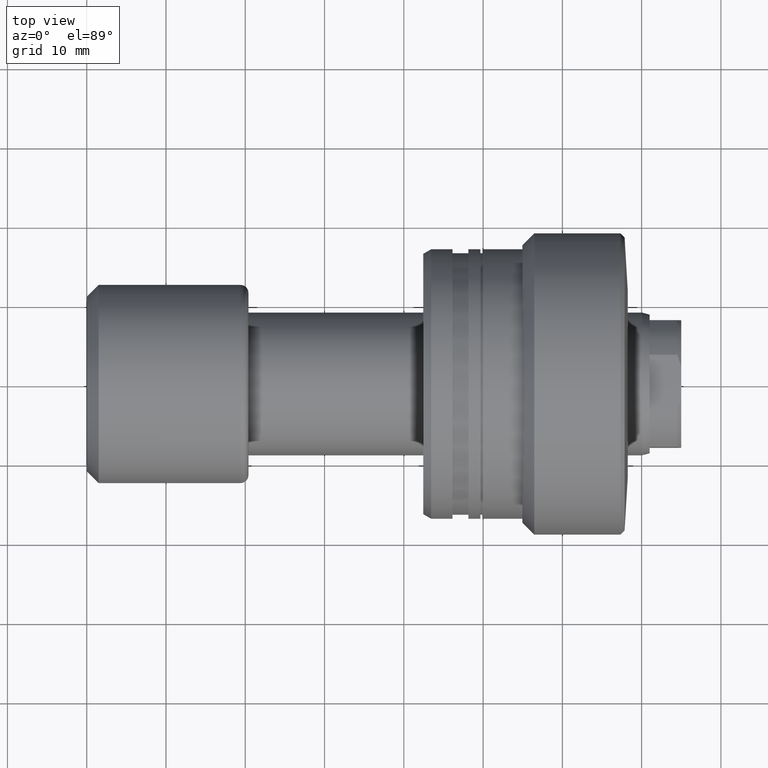
[diagram: clean part render]
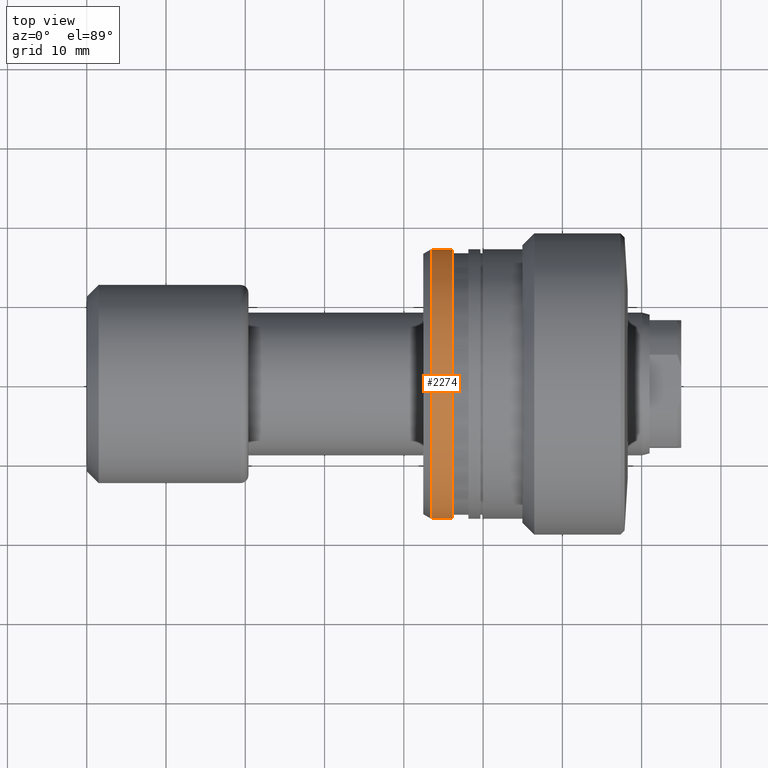
[diagram: same view with one face highlighted and labeled with its STEP entity id]
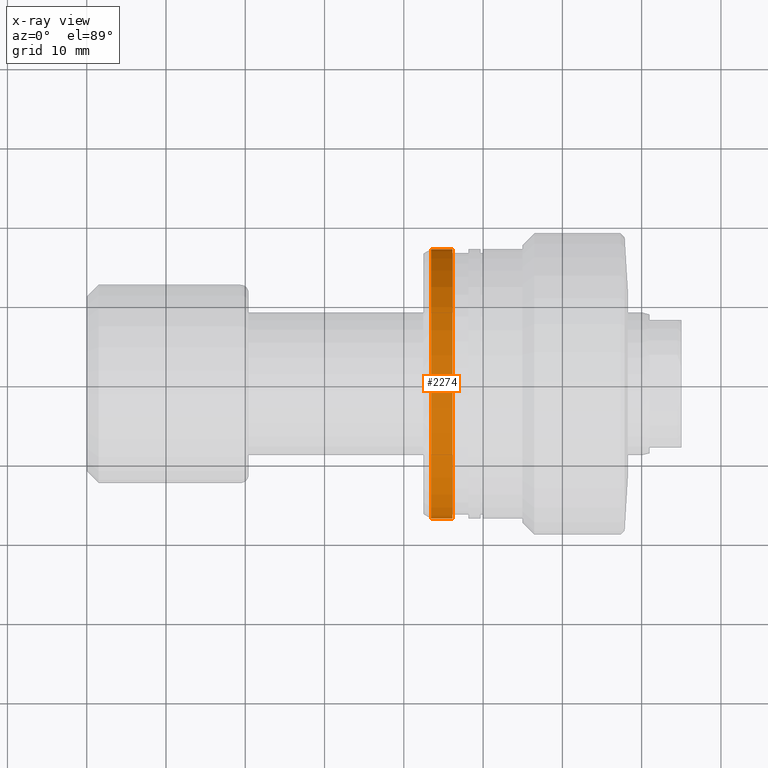
[diagram: x-ray of the same camera — body ghosted, the highlighted face saturated]
A machine part, top view. The second image highlights one B-rep face of the part: STEP entity #2274.
The next image is the same camera in x-ray: the body ghosted, the highlighted face saturated — about 0% of this face is hidden behind the body in this view.
In plain terms, the highlighted cylindrical surface (partial cylindrical patch) has radius 17 mm, axis along (-1, 0, 0).
Its self-contained STEP definition (entity closure, byte-faithful):
#110 = EDGE_CURVE ( 'NONE', #1497, #1958, #1859, .T. ) ;
#119 = AXIS2_PLACEMENT_3D ( 'NONE', #711, #321, #307 ) ;
#141 = CARTESIAN_POINT ( 'NONE',  ( -30.28002276692732408, 0.000000000000000000, 0.000000000000000000 ) ) ;
#154 = CARTESIAN_POINT ( 'NONE',  ( -30.28002276692730632, 16.99999999999999645, 2.081899558550499885E-15 ) ) ;
#182 = CARTESIAN_POINT ( 'NONE',  ( -22.80878161770234414, 16.99999999999998579, 2.081899558550499885E-15 ) ) ;
#274 = CARTESIAN_POINT ( 'NONE',  ( -22.80878161770236190, -7.329348763220012769E-15, 0.000000000000000000 ) ) ;
#307 = DIRECTION ( 'NONE',  ( -1.020425574104004196E-15, -1.000000000000000000, 0.000000000000000000 ) ) ;
#309 = EDGE_CURVE ( 'NONE', #923, #1356, #2252, .T. ) ;
#321 = DIRECTION ( 'NONE',  ( -1.000000000000000000, 9.810081908519753690E-16, -0.000000000000000000 ) ) ;
#339 = CARTESIAN_POINT ( 'NONE',  ( -25.50000000000017764, -17.00000000000000355, 2.081899558550500674E-15 ) ) ;
#492 = ORIENTED_EDGE ( 'NONE', *, *, #110, .T. ) ;
#550 = ORIENTED_EDGE ( 'NONE', *, *, #309, .F. ) ;
#572 = VECTOR ( 'NONE', #759, 1000.000000000000000 ) ;
#641 = ORIENTED_EDGE ( 'NONE', *, *, #2031, .F. ) ;
#711 = CARTESIAN_POINT ( 'NONE',  ( -25.50000000000015987, -4.689241486814468610E-15, 0.000000000000000000 ) ) ;
#755 = ORIENTED_EDGE ( 'NONE', *, *, #1988, .T. ) ;
#759 = DIRECTION ( 'NONE',  ( -1.000000000000000000, 9.810081908519753690E-16, -0.000000000000000000 ) ) ;
#816 = DIRECTION ( 'NONE',  ( -1.020425574104004591E-15, -1.000000000000000000, 0.000000000000000000 ) ) ;
#886 = CYLINDRICAL_SURFACE ( 'NONE', #1629, 16.99999999999999645 ) ;
#895 = DIRECTION ( 'NONE',  ( -1.000000000000000000, 9.810081908519753690E-16, -0.000000000000000000 ) ) ;
#923 = VERTEX_POINT ( 'NONE', #339 ) ;
#937 = CARTESIAN_POINT ( 'NONE',  ( -30.28002276692734185, -16.99999999999999645, 0.000000000000000000 ) ) ;
#939 = CARTESIAN_POINT ( 'NONE',  ( -22.80878161770237966, -17.00000000000000000, 0.000000000000000000 ) ) ;
#957 = VECTOR ( 'NONE', #2082, 1000.000000000000000 ) ;
#992 = DIRECTION ( 'NONE',  ( -1.000000000000000000, 9.810081908519753690E-16, -0.000000000000000000 ) ) ;
#1099 = EDGE_LOOP ( 'NONE', ( #492, #755, #550, #641 ) ) ;
#1255 = DIRECTION ( 'NONE',  ( -1.020425574104004394E-15, -1.000000000000000000, 0.000000000000000000 ) ) ;
#1356 = VERTEX_POINT ( 'NONE', #1487 ) ;
#1443 = AXIS2_PLACEMENT_3D ( 'NONE', #274, #992, #816 ) ;
#1487 = CARTESIAN_POINT ( 'NONE',  ( -25.50000000000014566, 16.99999999999999289, 0.000000000000000000 ) ) ;
#1497 = VERTEX_POINT ( 'NONE', #939 ) ;
#1629 = AXIS2_PLACEMENT_3D ( 'NONE', #141, #895, #1255 ) ;
#1664 = LINE ( 'NONE', #154, #957 ) ;
#1679 = LINE ( 'NONE', #937, #572 ) ;
#1859 = CIRCLE ( 'NONE', #1443, 16.99999999999999289 ) ;
#1958 = VERTEX_POINT ( 'NONE', #182 ) ;
#1988 = EDGE_CURVE ( 'NONE', #1958, #1356, #1664, .T. ) ;
#2031 = EDGE_CURVE ( 'NONE', #1497, #923, #1679, .T. ) ;
#2082 = DIRECTION ( 'NONE',  ( -1.000000000000000000, 9.810081908519753690E-16, -0.000000000000000000 ) ) ;
#2252 = CIRCLE ( 'NONE', #119, 17.00000000000000000 ) ;
#2274 = ADVANCED_FACE ( 'NONE', ( #2419 ), #886, .T. ) ;
#2419 = FACE_OUTER_BOUND ( 'NONE', #1099, .T. ) ;